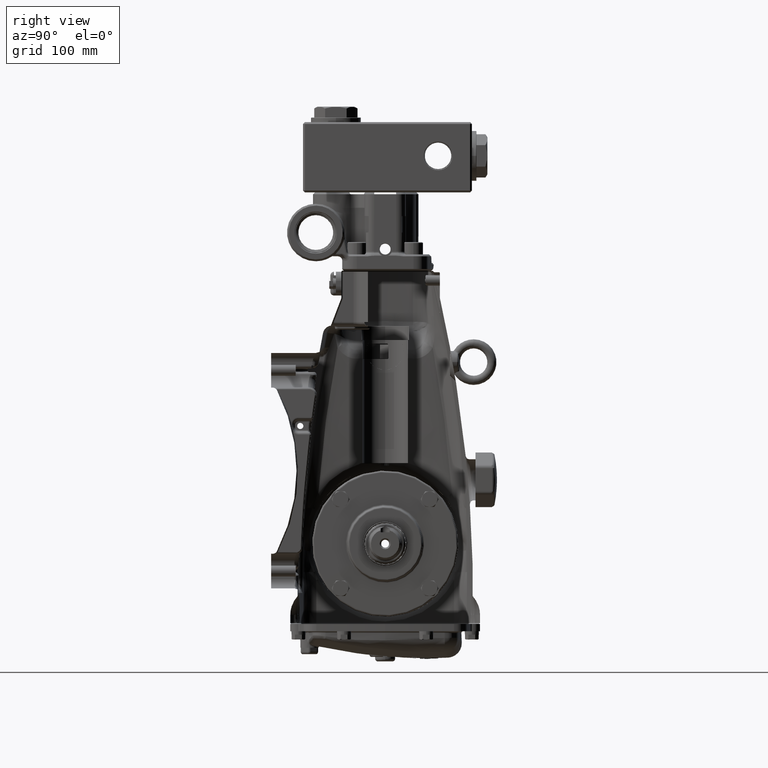
[diagram: clean part render]
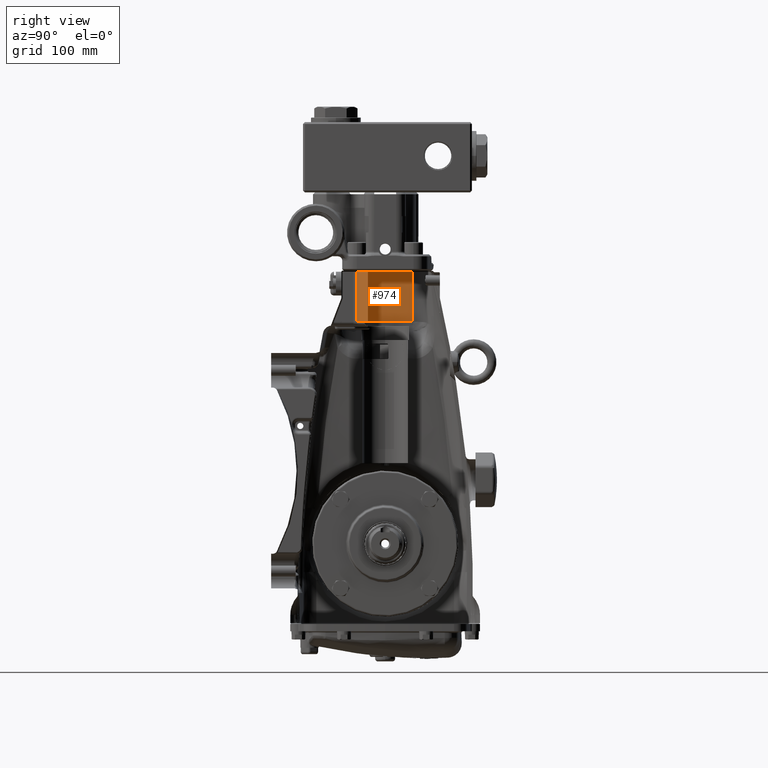
[diagram: same view with one face highlighted and labeled with its STEP entity id]
A machine part, right view. The second image highlights one B-rep face of the part: STEP entity #974.
In plain terms, the highlighted cylindrical surface (partial cylindrical patch) has radius 800 mm, axis along (0, 0, 1).
Its self-contained STEP definition (entity closure, byte-faithful):
#974 = ADVANCED_FACE ( 'NONE', ( #52909 ), #88230, .T. ) ;
#1050 = DIRECTION ( 'NONE',  ( -1.000000000000000000, 3.552713678800500929E-14, 0.0000000000000000000 ) ) ;
#1785 = EDGE_CURVE ( 'NONE', #25077, #26035, #2273, .T. ) ;
#2273 = CIRCLE ( 'NONE', #101818, 31.49606299212598515 ) ;
#3861 = VERTEX_POINT ( 'NONE', #7664 ) ;
#5574 = ORIENTED_EDGE ( 'NONE', *, *, #16055, .F. ) ;
#5705 = CARTESIAN_POINT ( 'NONE',  ( 4.586614173228348079, -0.4157926909638400281, 9.609100249467999788 ) ) ;
#7664 = CARTESIAN_POINT ( 'NONE',  ( 4.563911100640287266, 1.195658554601602308, 9.577527139217623997 ) ) ;
#9094 = CARTESIAN_POINT ( 'NONE',  ( -26.90944881889763707, 0.0000000000000000000, 7.834645669291337988 ) ) ;
#11409 = CARTESIAN_POINT ( 'NONE',  ( 4.561919890023213853, -1.246970565460927327, 7.834645669291337988 ) ) ;
#12497 = VECTOR ( 'NONE', #59493, 39.37007874015748143 ) ;
#14650 = ORIENTED_EDGE ( 'NONE', *, *, #85782, .F. ) ;
#16055 = EDGE_CURVE ( 'NONE', #26035, #36415, #107697, .T. ) ;
#16216 = VECTOR ( 'NONE', #46614, 39.37007874015748143 ) ;
#18594 = CARTESIAN_POINT ( 'NONE',  ( 4.579045573014092874, 0.7972733346907870944, 9.598574614751438361 ) ) ;
#22176 = CARTESIAN_POINT ( 'NONE',  ( 4.563911100640287266, 1.195658554601602308, 11.73228346456693139 ) ) ;
#24323 = CARTESIAN_POINT ( 'NONE',  ( 4.563911100640287266, 1.195658554601602308, 7.834645669291337988 ) ) ;
#24358 = EDGE_CURVE ( 'NONE', #28120, #25077, #63917, .T. ) ;
#25077 = VERTEX_POINT ( 'NONE', #61490 ) ;
#26035 = VERTEX_POINT ( 'NONE', #63000 ) ;
#28120 = VERTEX_POINT ( 'NONE', #96498 ) ;
#28574 =( BOUNDED_CURVE ( )  B_SPLINE_CURVE ( 3, ( #97750, #18594, #53772, #89099 ),
 .UNSPECIFIED., .F., .F. ) 
 B_SPLINE_CURVE_WITH_KNOTS ( ( 4, 4 ),
 ( 6.245214024113392881, 6.283185307179586232 ),
 .UNSPECIFIED. ) 
 CURVE ( )  GEOMETRIC_REPRESENTATION_ITEM ( )  RATIONAL_B_SPLINE_CURVE ( ( 1.000000000000000000, 0.9998798520809130119, 0.9998798520809130119, 1.000000000000000000 ) ) 
 REPRESENTATION_ITEM ( '' )  );
#31251 = CARTESIAN_POINT ( 'NONE',  ( -26.90944881889763707, 0.0000000000000000000, 11.73228346456693139 ) ) ;
#32740 = EDGE_CURVE ( 'NONE', #72802, #28120, #49108, .T. ) ;
#36415 = VERTEX_POINT ( 'NONE', #22176 ) ;
#39809 = EDGE_CURVE ( 'NONE', #3861, #72802, #28574, .T. ) ;
#40909 = CARTESIAN_POINT ( 'NONE',  ( 4.578381669614371319, -0.8315038740503637449, 9.597651325837400549 ) ) ;
#44289 = DIRECTION ( 'NONE',  ( 0.0000000000000000000, 0.0000000000000000000, 1.000000000000000000 ) ) ;
#44890 = CARTESIAN_POINT ( 'NONE',  ( -26.90944881889763707, 0.0000000000000000000, 11.73228346456693139 ) ) ;
#46614 = DIRECTION ( 'NONE',  ( 0.0000000000000000000, 0.0000000000000000000, 1.000000000000000000 ) ) ;
#48048 = ORIENTED_EDGE ( 'NONE', *, *, #24358, .F. ) ;
#49108 =( BOUNDED_CURVE ( )  B_SPLINE_CURVE ( 3, ( #84799, #5705, #40909, #76040 ),
 .UNSPECIFIED., .F., .T. ) 
 B_SPLINE_CURVE_WITH_KNOTS ( ( 4, 4 ),
 ( 0.0000000000000000000, 0.03960166580391112634 ),
 .UNSPECIFIED. ) 
 CURVE ( )  GEOMETRIC_REPRESENTATION_ITEM ( )  RATIONAL_B_SPLINE_CURVE ( ( 1.000000000000000000, 0.9998693132754411517, 0.9998693132754411517, 1.000000000000000000 ) ) 
 REPRESENTATION_ITEM ( '' )  );
#52909 = FACE_OUTER_BOUND ( 'NONE', #78979, .T. ) ;
#53772 = CARTESIAN_POINT ( 'NONE',  ( 4.586614173228348079, 0.3986725921071437861, 9.609100249467999788 ) ) ;
#59493 = DIRECTION ( 'NONE',  ( -0.0000000000000000000, -0.0000000000000000000, -1.000000000000000000 ) ) ;
#61490 = CARTESIAN_POINT ( 'NONE',  ( 4.561919890023213853, -1.246970565460927327, 11.73228346456693139 ) ) ;
#62148 = ORIENTED_EDGE ( 'NONE', *, *, #1785, .F. ) ;
#63000 = CARTESIAN_POINT ( 'NONE',  ( 4.586614173228348079, 0.0000000000000000000, 11.73228346456693139 ) ) ;
#63917 = LINE ( 'NONE', #11409, #16216 ) ;
#65315 = CARTESIAN_POINT ( 'NONE',  ( 4.586614173228346303, 0.0000000000000000000, 9.609100249467996235 ) ) ;
#66434 = DIRECTION ( 'NONE',  ( 0.0000000000000000000, 0.0000000000000000000, 1.000000000000000000 ) ) ;
#72571 = AXIS2_PLACEMENT_3D ( 'NONE', #31251, #66434, #101752 ) ;
#72802 = VERTEX_POINT ( 'NONE', #65315 ) ;
#76040 = CARTESIAN_POINT ( 'NONE',  ( 4.561919890023213853, -1.246970565460927327, 9.574757967243183288 ) ) ;
#78695 = ORIENTED_EDGE ( 'NONE', *, *, #39809, .F. ) ;
#78979 = EDGE_LOOP ( 'NONE', ( #48048, #101642, #78695, #14650, #5574, #62148 ) ) ;
#79447 = DIRECTION ( 'NONE',  ( -1.000000000000000000, 0.0000000000000000000, 0.0000000000000000000 ) ) ;
#80059 = DIRECTION ( 'NONE',  ( 0.0000000000000000000, 0.0000000000000000000, 1.000000000000000000 ) ) ;
#84799 = CARTESIAN_POINT ( 'NONE',  ( 4.586614173228346303, 0.0000000000000000000, 9.609100249467996235 ) ) ;
#85782 = EDGE_CURVE ( 'NONE', #36415, #3861, #103462, .T. ) ;
#88230 = CYLINDRICAL_SURFACE ( 'NONE', #112822, 31.49606299212598515 ) ;
#89099 = CARTESIAN_POINT ( 'NONE',  ( 4.586614173228346303, 0.0000000000000000000, 9.609100249467996235 ) ) ;
#96498 = CARTESIAN_POINT ( 'NONE',  ( 4.561919890023213853, -1.246970565460927327, 9.574757967243183288 ) ) ;
#97750 = CARTESIAN_POINT ( 'NONE',  ( 4.563911100640287266, 1.195658554601602308, 9.577527139217623997 ) ) ;
#101642 = ORIENTED_EDGE ( 'NONE', *, *, #32740, .F. ) ;
#101752 = DIRECTION ( 'NONE',  ( -1.000000000000000000, 0.0000000000000000000, 0.0000000000000000000 ) ) ;
#101818 = AXIS2_PLACEMENT_3D ( 'NONE', #44890, #80059, #1050 ) ;
#103462 = LINE ( 'NONE', #24323, #12497 ) ;
#107697 = CIRCLE ( 'NONE', #72571, 31.49606299212598515 ) ;
#112822 = AXIS2_PLACEMENT_3D ( 'NONE', #9094, #44289, #79447 ) ;